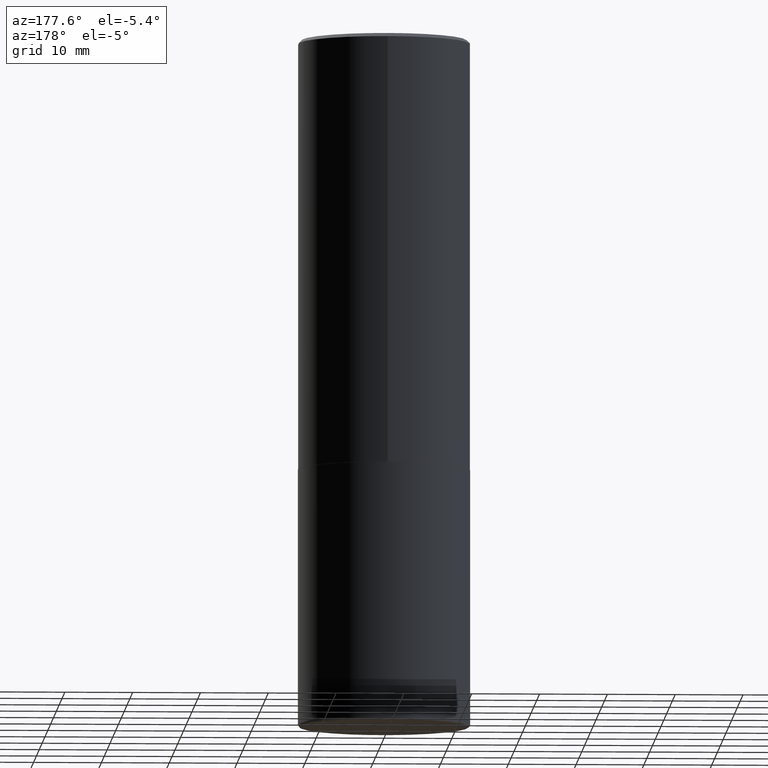
[diagram: clean part render]
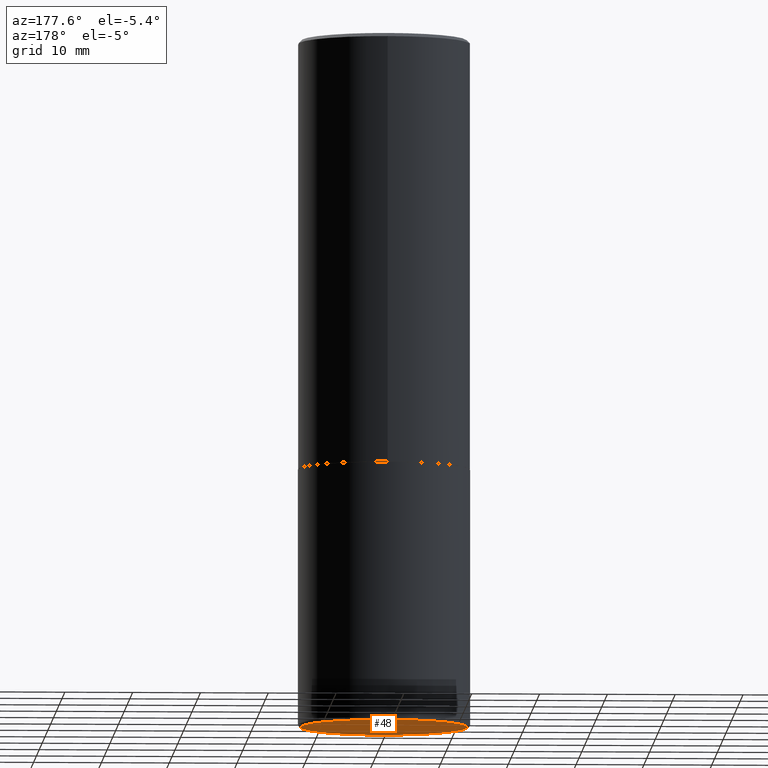
[diagram: same view with one face highlighted and labeled with its STEP entity id]
A machine part, auxiliary view. The second image highlights one B-rep face of the part: STEP entity #48.
In plain terms, the highlighted planar face has unit normal (0, -0, -1).
Its self-contained STEP definition (entity closure, byte-faithful):
#12 = DIRECTION ( 'NONE',  ( 1.000000000000000000, -6.982962677686265922E-15, 0.000000000000000000 ) ) ;
#21 = AXIS2_PLACEMENT_3D ( 'NONE', #158, #151, #249 ) ;
#45 = VERTEX_POINT ( 'NONE', #307 ) ;
#48 = ADVANCED_FACE ( 'NONE', ( #215 ), #181, .T. ) ;
#83 = ORIENTED_EDGE ( 'NONE', *, *, #278, .F. ) ;
#115 = ORIENTED_EDGE ( 'NONE', *, *, #118, .F. ) ;
#118 = EDGE_CURVE ( 'NONE', #142, #45, #312, .T. ) ;
#134 = EDGE_LOOP ( 'NONE', ( #83, #115 ) ) ;
#141 = DIRECTION ( 'NONE',  ( -2.445468806185136597E-29, 3.491481338843145583E-15, 1.000000000000000000 ) ) ;
#142 = VERTEX_POINT ( 'NONE', #210 ) ;
#151 = DIRECTION ( 'NONE',  ( -2.445468806185136597E-29, 3.491481338843145583E-15, 1.000000000000000000 ) ) ;
#158 = CARTESIAN_POINT ( 'NONE',  ( 9.781875224740546387E-29, -1.396592535537258233E-14, -4.000000000000000000 ) ) ;
#178 = CIRCLE ( 'NONE', #415, 0.4850000000000000422 ) ;
#181 = PLANE ( 'NONE',  #191 ) ;
#191 = AXIS2_PLACEMENT_3D ( 'NONE', #315, #283, #345 ) ;
#210 = CARTESIAN_POINT ( 'NONE',  ( -0.4850000000000000422, -1.044031627171276444E-14, -4.000000000000000000 ) ) ;
#215 = FACE_OUTER_BOUND ( 'NONE', #134, .T. ) ;
#249 = DIRECTION ( 'NONE',  ( 1.000000000000000000, -6.982962677686265922E-15, 0.000000000000000000 ) ) ;
#278 = EDGE_CURVE ( 'NONE', #45, #142, #178, .T. ) ;
#283 = DIRECTION ( 'NONE',  ( 2.438088387897960049E-29, -3.491481338843145188E-15, -1.000000000000000000 ) ) ;
#307 = CARTESIAN_POINT ( 'NONE',  ( 0.4850000000000000422, -1.735266225405042074E-14, -4.000000000000000000 ) ) ;
#312 = CIRCLE ( 'NONE', #21, 0.4850000000000000422 ) ;
#315 = CARTESIAN_POINT ( 'NONE',  ( 9.781875224740546387E-29, -1.396592535537258233E-14, -4.000000000000000000 ) ) ;
#345 = DIRECTION ( 'NONE',  ( -1.000000000000000000, 6.982962677686265922E-15, -4.876176775795935793E-29 ) ) ;
#400 = CARTESIAN_POINT ( 'NONE',  ( 9.781875224740546387E-29, -1.396592535537258233E-14, -4.000000000000000000 ) ) ;
#415 = AXIS2_PLACEMENT_3D ( 'NONE', #400, #141, #12 ) ;